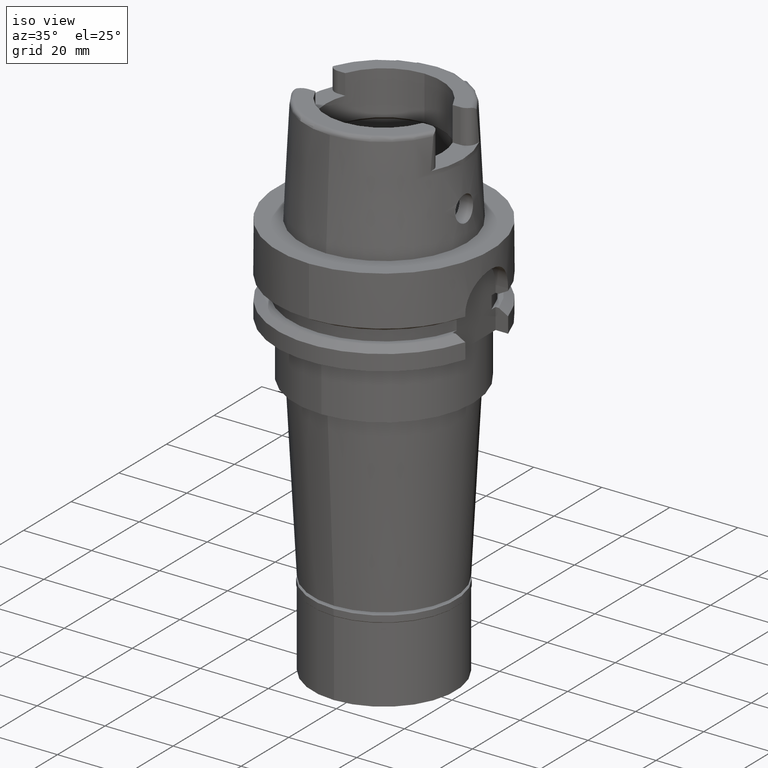
[diagram: clean part render]
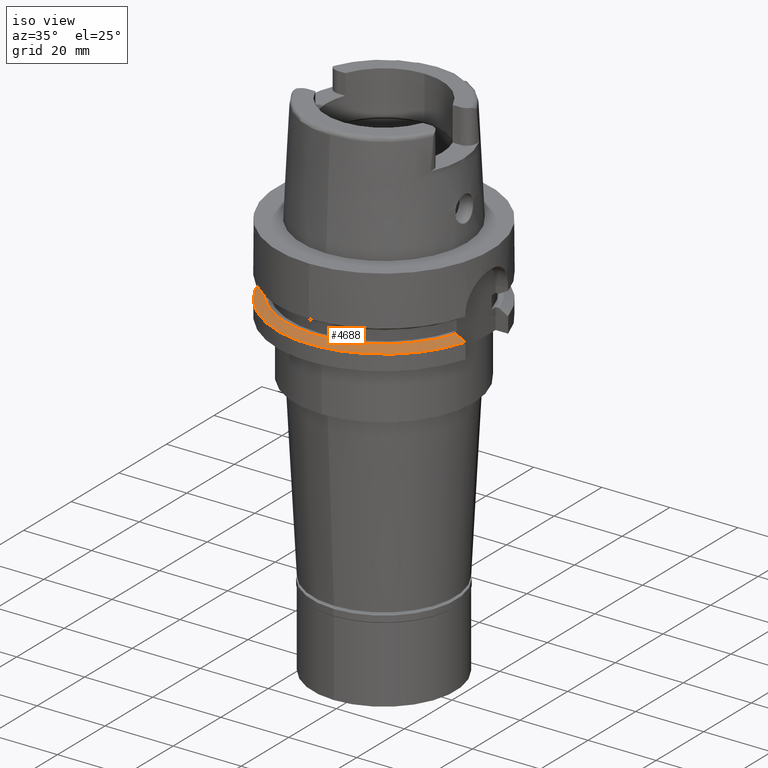
[diagram: same view with one face highlighted and labeled with its STEP entity id]
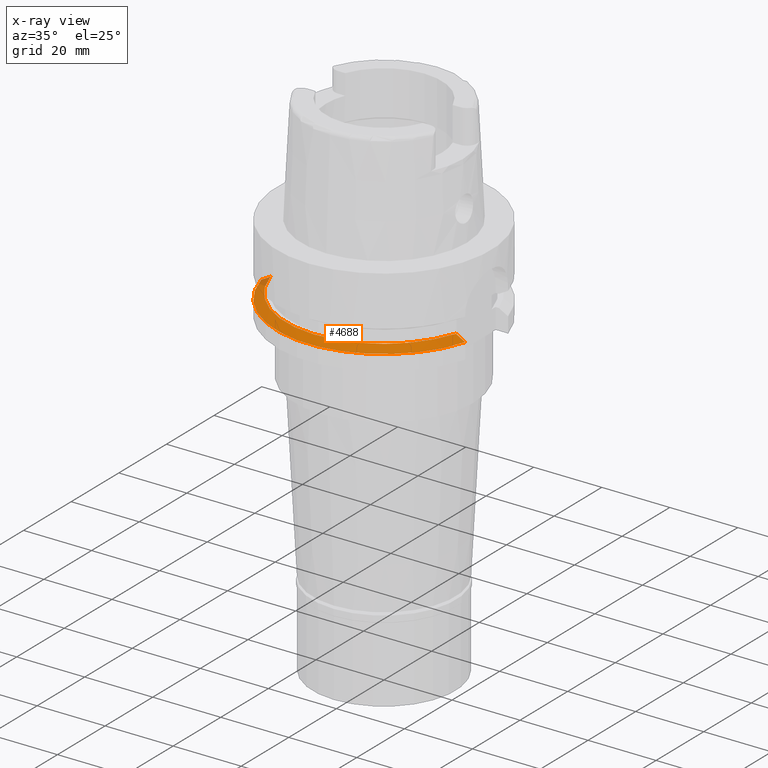
[diagram: x-ray of the same camera — body ghosted, the highlighted face saturated]
A machine part, iso view. The second image highlights one B-rep face of the part: STEP entity #4688.
The next image is the same camera in x-ray: the body ghosted, the highlighted face saturated — about 2% of this face is hidden behind the body in this view.
In plain terms, the highlighted conical surface has half-angle 60 deg.
Its self-contained STEP definition (entity closure, byte-faithful):
#77 = CARTESIAN_POINT ( 'NONE',  ( 27.46035345827000285, -9.000000000000000000, -19.87500000000000000 ) ) ;
#93 = B_SPLINE_CURVE_WITH_KNOTS ( 'NONE', 3,
 ( #4839, #3931, #4311, #4812 ),
 .UNSPECIFIED., .F., .F.,
 ( 4, 4 ),
 ( 0.0000000000000000000, 1.000000000000000000 ),
 .UNSPECIFIED. ) ;
#179 = AXIS2_PLACEMENT_3D ( 'NONE', #1820, #3464, #5185 ) ;
#242 = ORIENTED_EDGE ( 'NONE', *, *, #5277, .T. ) ;
#382 = CARTESIAN_POINT ( 'NONE',  ( 28.33125883934195954, -8.999998543035536258, -20.35280924244215583 ) ) ;
#618 = AXIS2_PLACEMENT_3D ( 'NONE', #3288, #3236, #2017 ) ;
#1246 = EDGE_CURVE ( 'NONE', #3590, #3856, #93, .T. ) ;
#1313 = VERTEX_POINT ( 'NONE', #2228 ) ;
#1405 = EDGE_LOOP ( 'NONE', ( #3707, #5187, #242, #4221 ) ) ;
#1425 = EDGE_CURVE ( 'NONE', #2427, #3856, #2552, .T. ) ;
#1820 = CARTESIAN_POINT ( 'NONE',  ( 0.0000000000000000000, 0.0000000000000000000, -20.62624953738000144 ) ) ;
#2017 = DIRECTION ( 'NONE',  ( 0.9583148474999051425, -0.2857142857143015191, 0.0000000000000000000 ) ) ;
#2228 = CARTESIAN_POINT ( 'NONE',  ( 27.46035345827000285, -9.000000000000000000, -19.87500000000000000 ) ) ;
#2322 = DIRECTION ( 'NONE',  ( 0.0000000000000000000, 0.0000000000000000000, -1.000000000000000000 ) ) ;
#2427 = VERTEX_POINT ( 'NONE', #2882 ) ;
#2552 = CIRCLE ( 'NONE', #618, 31.49999999999999645 ) ;
#2654 = CARTESIAN_POINT ( 'NONE',  ( -30.46719534865000156, -8.000000474182998644, -21.37750337949999846 ) ) ;
#2816 = DIRECTION ( 'NONE',  ( 0.0000000000000000000, -1.000000000000000000, 0.0000000000000000000 ) ) ;
#2828 = CARTESIAN_POINT ( 'NONE',  ( -27.76816318615000156, -8.000000147127000361, -19.87500000000000000 ) ) ;
#2882 = CARTESIAN_POINT ( 'NONE',  ( 30.18691769625000276, -9.000000000000000000, -21.37749907476000288 ) ) ;
#2999 = CARTESIAN_POINT ( 'NONE',  ( 29.24010044504802153, -8.999999709175824592, -20.85364081948881676 ) ) ;
#3031 = AXIS2_PLACEMENT_3D ( 'NONE', #4878, #2322, #2816 ) ;
#3081 = FACE_OUTER_BOUND ( 'NONE', #1405, .T. ) ;
#3236 = DIRECTION ( 'NONE',  ( 0.0000000000000000000, 0.0000000000000000000, -1.000000000000000000 ) ) ;
#3288 = CARTESIAN_POINT ( 'NONE',  ( 0.0000000000000000000, 0.0000000000000000000, -21.37749907476000288 ) ) ;
#3464 = DIRECTION ( 'NONE',  ( 0.0000000000000000000, 0.0000000000000000000, -1.000000000000000000 ) ) ;
#3590 = VERTEX_POINT ( 'NONE', #2828 ) ;
#3702 = CONICAL_SURFACE ( 'NONE', #179, 30.19879763209999979, 1.047197551196400456 ) ;
#3707 = ORIENTED_EDGE ( 'NONE', *, *, #1246, .T. ) ;
#3856 = VERTEX_POINT ( 'NONE', #2654 ) ;
#3909 = CIRCLE ( 'NONE', #3031, 28.89759526419000224 ) ;
#3931 = CARTESIAN_POINT ( 'NONE',  ( -28.63001157000482166, -8.000000294553212044, -20.35313950835107732 ) ) ;
#4221 = ORIENTED_EDGE ( 'NONE', *, *, #4521, .T. ) ;
#4311 = CARTESIAN_POINT ( 'NONE',  ( -29.52968317993011382, -8.000000948049709848, -20.85397319909464287 ) ) ;
#4521 = EDGE_CURVE ( 'NONE', #1313, #3590, #3909, .T. ) ;
#4688 = ADVANCED_FACE ( 'NONE', ( #3081 ), #3702, .T. ) ;
#4736 = B_SPLINE_CURVE_WITH_KNOTS ( 'NONE', 3,
 ( #5018, #2999, #382, #77 ),
 .UNSPECIFIED., .F., .F.,
 ( 4, 4 ),
 ( 0.0000000000000000000, 1.000000000000000000 ),
 .UNSPECIFIED. ) ;
#4812 = CARTESIAN_POINT ( 'NONE',  ( -30.46719534865000156, -8.000000474182998644, -21.37750337949999846 ) ) ;
#4839 = CARTESIAN_POINT ( 'NONE',  ( -27.76816318615000156, -8.000000147127000361, -19.87500000000000000 ) ) ;
#4878 = CARTESIAN_POINT ( 'NONE',  ( 0.0000000000000000000, 0.0000000000000000000, -19.87500000000000000 ) ) ;
#5018 = CARTESIAN_POINT ( 'NONE',  ( 30.18691769625000276, -9.000000000000000000, -21.37749907476000288 ) ) ;
#5185 = DIRECTION ( 'NONE',  ( 0.0000000000000000000, -1.000000000000000000, 0.0000000000000000000 ) ) ;
#5187 = ORIENTED_EDGE ( 'NONE', *, *, #1425, .F. ) ;
#5277 = EDGE_CURVE ( 'NONE', #2427, #1313, #4736, .T. ) ;